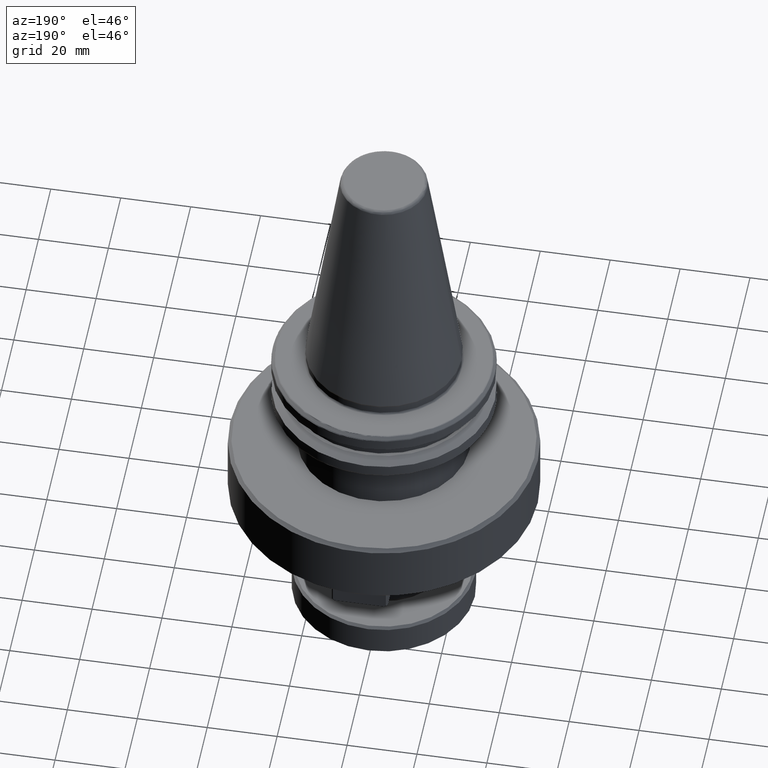
[diagram: clean part render]
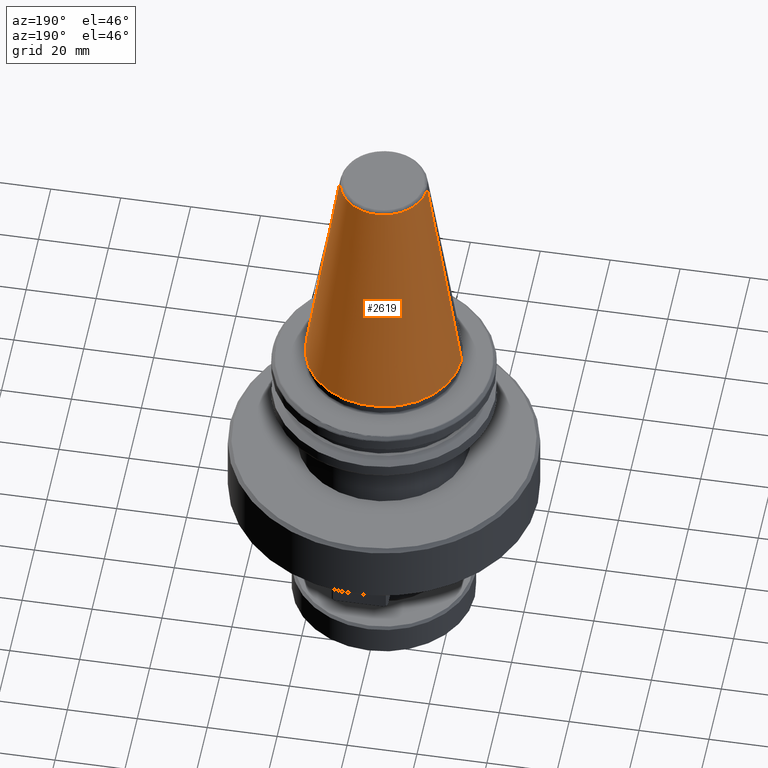
[diagram: same view with one face highlighted and labeled with its STEP entity id]
A machine part, auxiliary view. The second image highlights one B-rep face of the part: STEP entity #2619.
In plain terms, the highlighted conical surface has half-angle 8.297 deg.
Its self-contained STEP definition (entity closure, byte-faithful):
#4 = VERTEX_POINT ( 'NONE', #3650 ) ;
#357 = EDGE_CURVE ( 'NONE', #4232, #3393, #634, .T. ) ;
#374 = LINE ( 'NONE', #1533, #1637 ) ;
#611 = ORIENTED_EDGE ( 'NONE', *, *, #2466, .T. ) ;
#620 = EDGE_CURVE ( 'NONE', #4, #1645, #3057, .T. ) ;
#634 = CIRCLE ( 'NONE', #2240, 12.37469537611110800 ) ;
#711 = DIRECTION ( 'NONE',  ( 1.000000000000000000, 0.0000000000000000000, 9.822541477422708000E-017 ) ) ;
#717 = DIRECTION ( 'NONE',  ( -0.0000000000000000000, -0.0000000000000000000, -1.000000000000000000 ) ) ;
#718 = CARTESIAN_POINT ( 'NONE',  ( 0.0000000000000000000, 0.0000000000000000000, 0.0000000000000000000 ) ) ;
#1360 = CONICAL_SURFACE ( 'NONE', #3597, 22.22500000000000100, 0.1448138465474190500 ) ;
#1533 = CARTESIAN_POINT ( 'NONE',  ( 22.22500000000000100, 2.721777511104992800E-015, 0.0000000000000000000 ) ) ;
#1605 = LINE ( 'NONE', #2645, #4138 ) ;
#1637 = VECTOR ( 'NONE', #3894, 1000.000000000000000 ) ;
#1645 = VERTEX_POINT ( 'NONE', #1999 ) ;
#1830 = ORIENTED_EDGE ( 'NONE', *, *, #620, .F. ) ;
#1959 = DIRECTION ( 'NONE',  ( -1.000000000000000000, 0.0000000000000000000, 0.0000000000000000000 ) ) ;
#1999 = CARTESIAN_POINT ( 'NONE',  ( 22.22500000000000100, 2.721777511104992800E-015, 0.0000000000000000000 ) ) ;
#2240 = AXIS2_PLACEMENT_3D ( 'NONE', #2543, #2491, #2486 ) ;
#2282 = CARTESIAN_POINT ( 'NONE',  ( 0.0000000000000000000, 0.0000000000000000000, 0.0000000000000000000 ) ) ;
#2466 = EDGE_CURVE ( 'NONE', #3393, #1645, #374, .T. ) ;
#2473 = ORIENTED_EDGE ( 'NONE', *, *, #357, .T. ) ;
#2486 = DIRECTION ( 'NONE',  ( -1.000000000000000000, 0.0000000000000000000, 0.0000000000000000000 ) ) ;
#2491 = DIRECTION ( 'NONE',  ( 0.0000000000000000000, 0.0000000000000000000, -1.000000000000000000 ) ) ;
#2543 = CARTESIAN_POINT ( 'NONE',  ( 0.0000000000000000000, 0.0000000000000000000, 67.54430822726729400 ) ) ;
#2557 = FACE_OUTER_BOUND ( 'NONE', #4049, .T. ) ;
#2619 = ADVANCED_FACE ( 'NONE', ( #2557 ), #1360, .T. ) ;
#2645 = CARTESIAN_POINT ( 'NONE',  ( -22.22500000000000100, 0.0000000000000000000, 0.0000000000000000000 ) ) ;
#2647 = DIRECTION ( 'NONE',  ( 0.0000000000000000000, 0.0000000000000000000, -1.000000000000000000 ) ) ;
#2753 = CARTESIAN_POINT ( 'NONE',  ( 12.37469537611110800, 2.118620309691397300E-015, 67.54430822726729400 ) ) ;
#3057 = CIRCLE ( 'NONE', #3459, 22.22500000000000500 ) ;
#3393 = VERTEX_POINT ( 'NONE', #2753 ) ;
#3395 = ORIENTED_EDGE ( 'NONE', *, *, #4356, .F. ) ;
#3459 = AXIS2_PLACEMENT_3D ( 'NONE', #718, #717, #711 ) ;
#3597 = AXIS2_PLACEMENT_3D ( 'NONE', #2282, #2647, #1959 ) ;
#3650 = CARTESIAN_POINT ( 'NONE',  ( -22.22500000000000100, 0.0000000000000000000, 0.0000000000000000000 ) ) ;
#3749 = DIRECTION ( 'NONE',  ( -0.1443082272673070500, 0.0000000000000000000, -0.9895327864921743500 ) ) ;
#3868 = CARTESIAN_POINT ( 'NONE',  ( -12.37469537611110800, 0.0000000000000000000, 67.54430822726729400 ) ) ;
#3894 = DIRECTION ( 'NONE',  ( 0.1443082272673070500, 1.767266086135363700E-017, -0.9895327864921743500 ) ) ;
#4049 = EDGE_LOOP ( 'NONE', ( #2473, #611, #1830, #3395 ) ) ;
#4138 = VECTOR ( 'NONE', #3749, 1000.000000000000000 ) ;
#4232 = VERTEX_POINT ( 'NONE', #3868 ) ;
#4356 = EDGE_CURVE ( 'NONE', #4232, #4, #1605, .T. ) ;